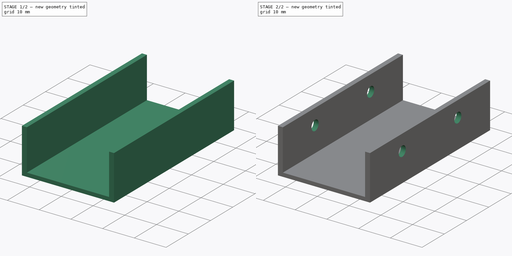
[diagram: build sequence overview — one tinted view per stage of 2, left to right]
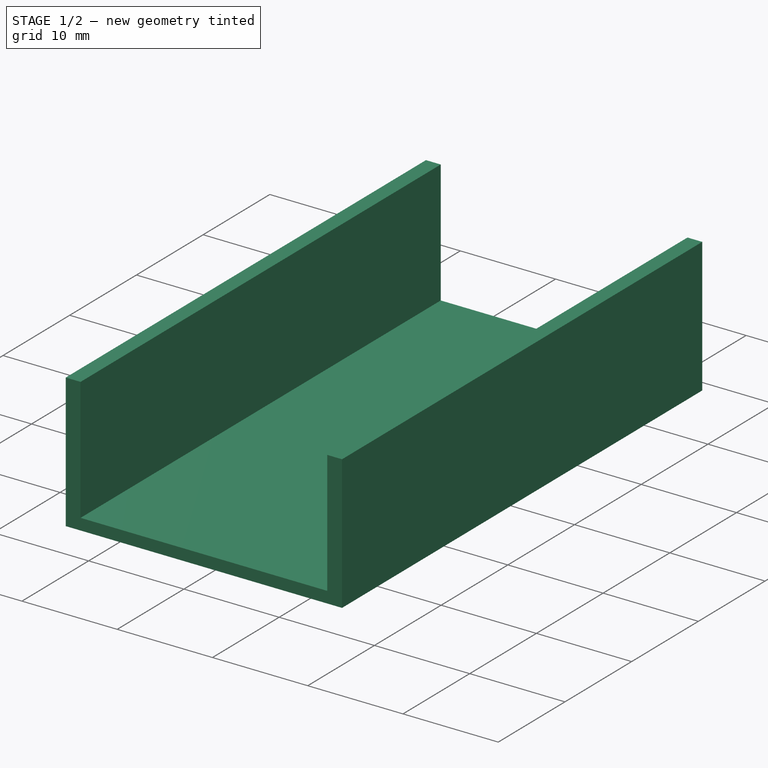
[diagram: stage 1 of 2 — iso view after this stage's code; geometry added in this stage tinted green]
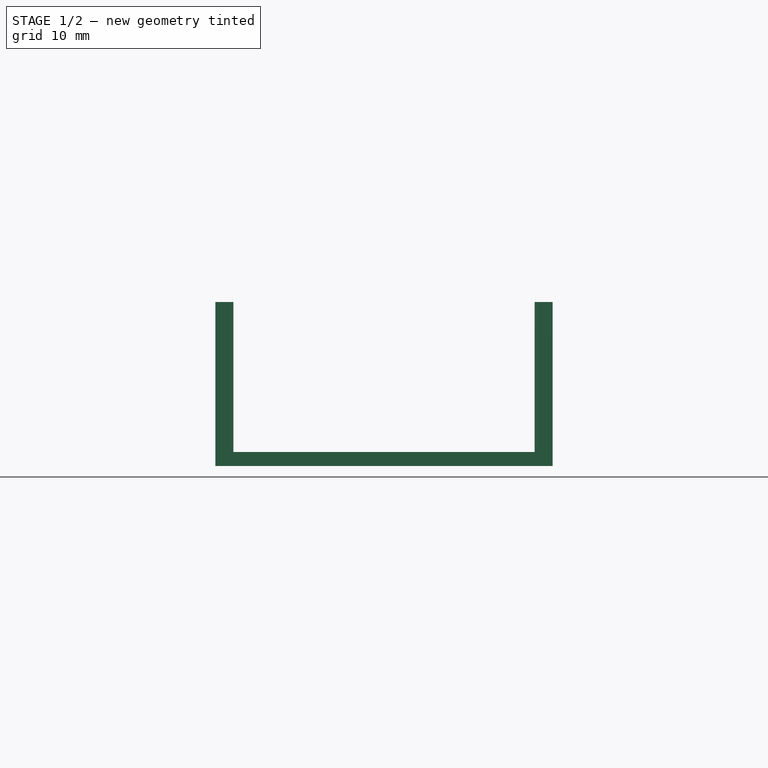
[diagram: stage 1 of 2 — front view after this stage's code; geometry added in this stage tinted green]
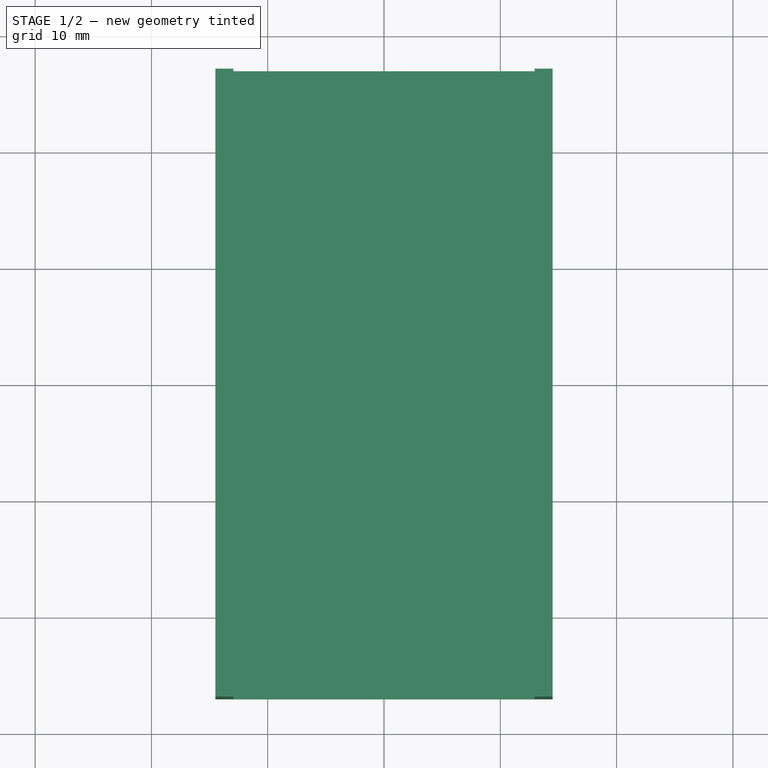
[diagram: stage 1 of 2 — top view after this stage's code; geometry added in this stage tinted green]
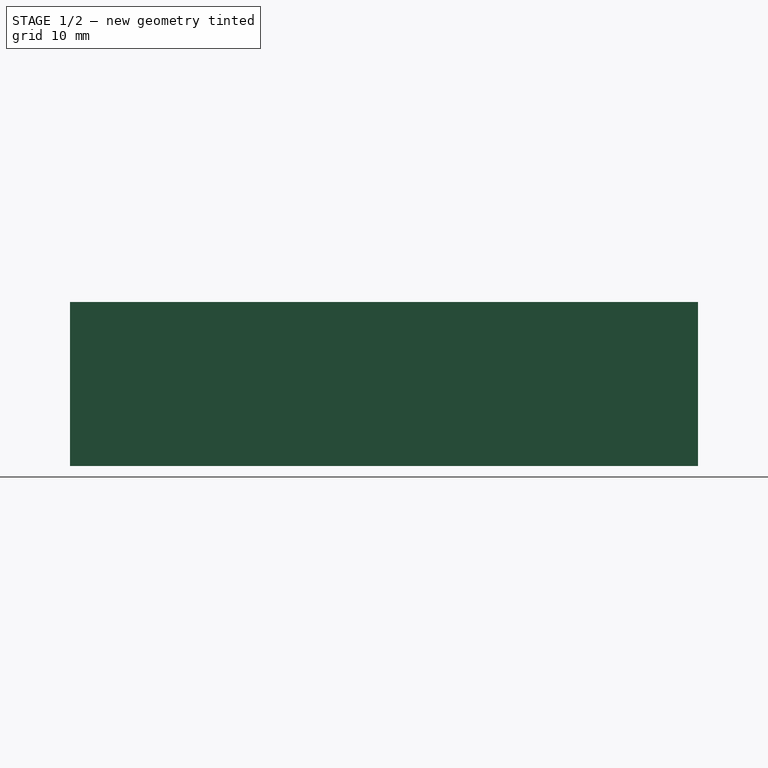
[diagram: stage 1 of 2 — right view after this stage's code; geometry added in this stage tinted green]
FCSTD DOCUMENT  (FreeCAD 0.21R33771 (Git))
Label: Holder Pad
License: All rights reserved
LicenseURL: http://en.wikipedia.org/wiki/All_rights_reserved
objects: Sketcher::SketchObject×2, PartDesign::CoordinateSystem×2, PartDesign::Pad×1, PartDesign::Pocket×1, PartDesign::Body×1
note: 9 computed .brp shape members not serialized (recipe doc carries the construction recipe); baked Part::Feature solids carry a one-line shape summary decoded from their .brp

FEATURE [Sketcher::SketchObject] Sketch
  FullyConstrained = true
  MapMode = 5
  Placement = pos=(0,0,0) rot=(1,0,0;1.5708rad)
  Support = -> [XZ_Plane001]
  sketch-geometry (8):
    g0: LineSegment StartX=-14.5 StartY=14.1 StartZ=0 EndX=-14.5 EndY=0 EndZ=0
    g1: LineSegment StartX=-14.5 StartY=0 StartZ=0 EndX=14.5 EndY=0 EndZ=0
    g2: LineSegment StartX=14.5 StartY=0 StartZ=0 EndX=14.5 EndY=14.1 EndZ=0
    g3: LineSegment StartX=14.5 StartY=14.1 StartZ=0 EndX=12.95 EndY=14.1 EndZ=0
    g4: LineSegment StartX=12.95 StartY=1.2 StartZ=0 EndX=-12.95 EndY=1.2 EndZ=0
    g5: LineSegment StartX=-12.95 StartY=1.2 StartZ=0 EndX=-12.95 EndY=14.1 EndZ=0
    g6: LineSegment StartX=-12.95 StartY=14.1 StartZ=0 EndX=-14.5 EndY=14.1 EndZ=0
    g7: LineSegment StartX=12.95 StartY=14.1 StartZ=0 EndX=12.95 EndY=1.2 EndZ=0
  constraints (23):
    c: PointOnObject(g0,g-1)
    c: Vertical(g0)
    c: Coincident(g0,g1)
    c: PointOnObject(g1,g-1)
    c: Coincident(g1,g2)
    c: Vertical(g2)
    c: Coincident(g2,g3)
    c: Horizontal(g3)
    c: Coincident(g7,g4)
    c: Horizontal(g4)
    c: Coincident(g4,g5)
    c: Vertical(g5)
    c: Coincident(g6,g0)
    c: Horizontal(g6)
    c: Equal(g3,g6)
    c: Symmetric(g3,g6,g-2)
    c: DistanceX(g4,g4) = 25.9
    c: DistanceY(g0,g0) = 14.1  'height'
    c: Vertical(g7)
    c: DistanceY(g0,g4) = 1.2
    c: DistanceX(g1,g1) = 29
    c: Coincident(g7,g3)
    c: Coincident(g5,g6)
FEATURE [PartDesign::Pad] Pad
  Direction = (0,-1,-2e-16)
  Length = 54
  Length2 = 10
  Midplane = true
  Placement = pos=(0,0,0) rot=(1,0,0;1.5708rad)
  Profile = -> Sketch
  ReferenceAxis = -> Sketch [N_Axis]
  Type = 0
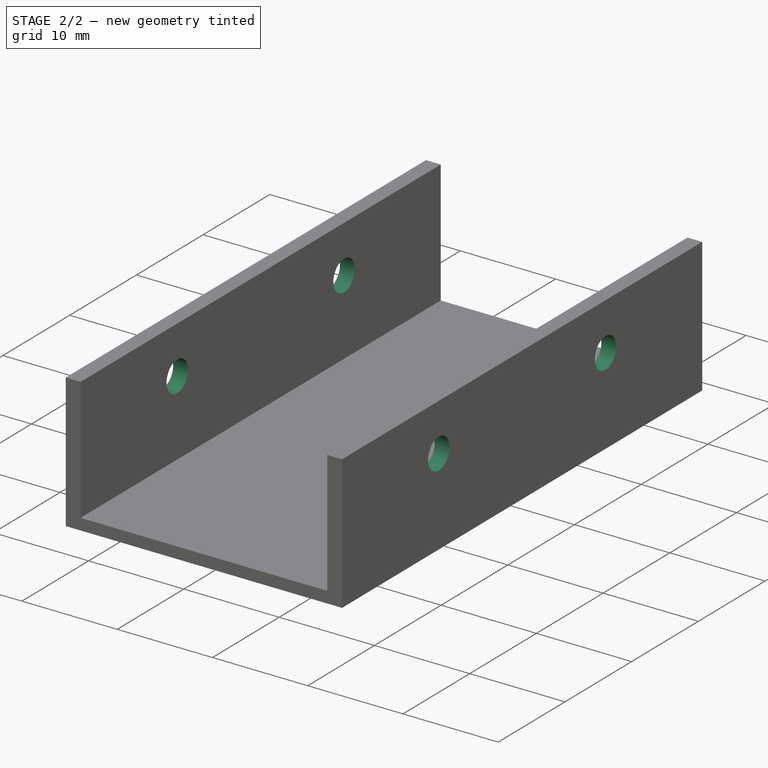
[diagram: stage 2 of 2 — iso view after this stage's code; geometry added in this stage tinted green]
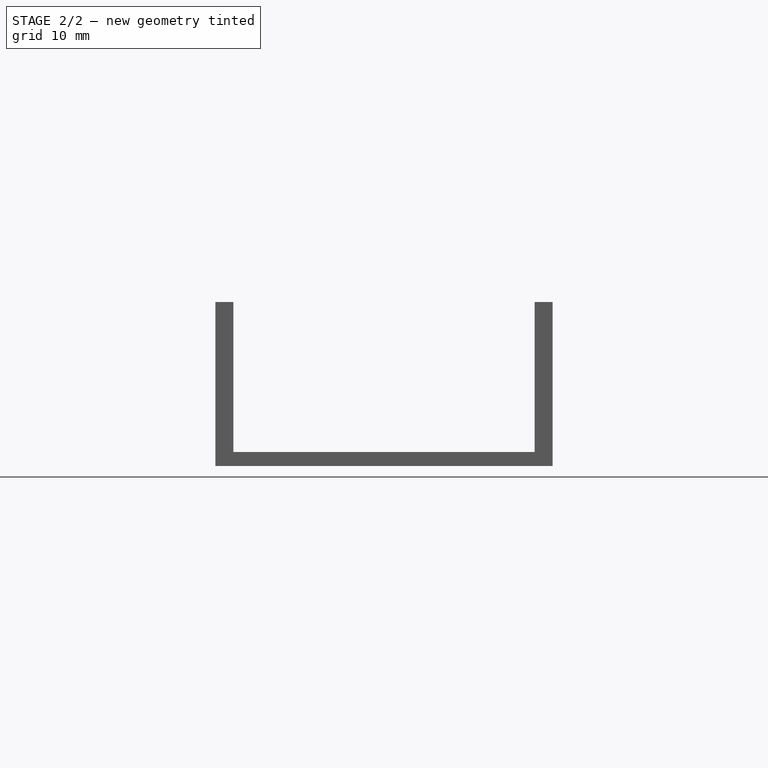
[diagram: stage 2 of 2 — front view after this stage's code; geometry added in this stage tinted green]
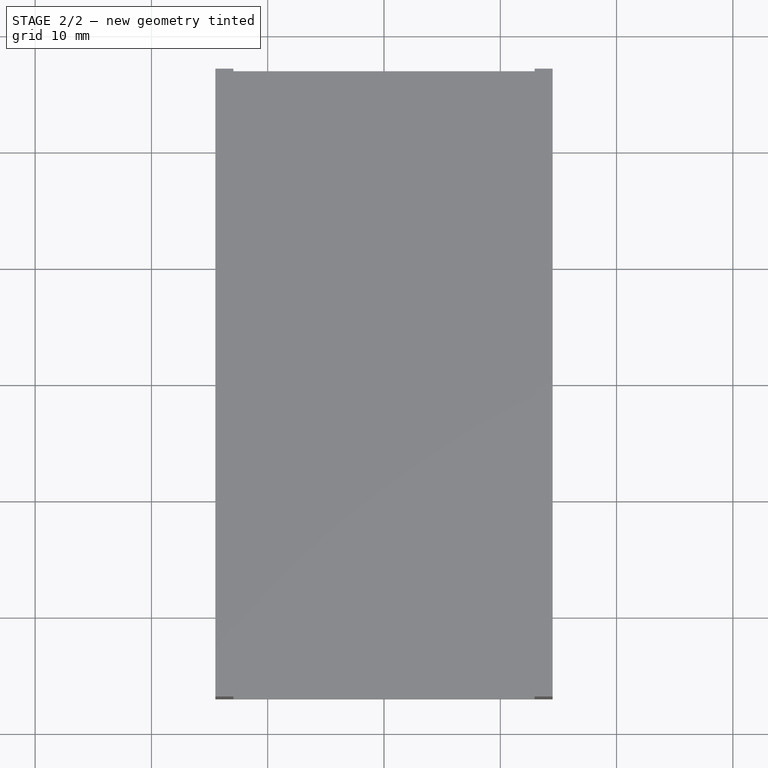
[diagram: stage 2 of 2 — top view after this stage's code; geometry added in this stage tinted green]
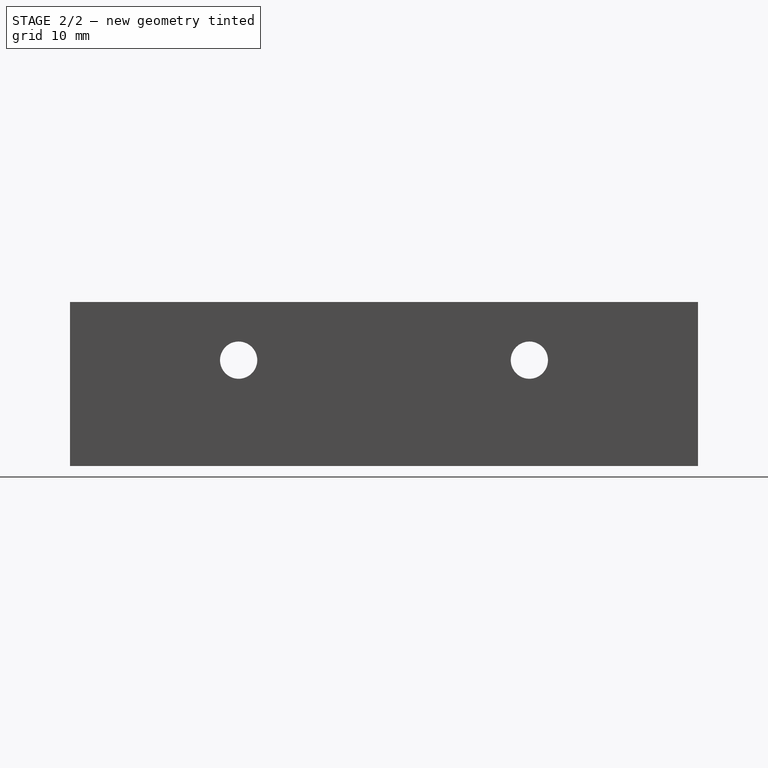
[diagram: stage 2 of 2 — right view after this stage's code; geometry added in this stage tinted green]
FEATURE [Sketcher::SketchObject] Sketch001
  FullyConstrained = true
  MapMode = 5
  Placement = pos=(0,0,0) rot=(0.57735,0.57735,0.57735;2.0944rad)
  Support = -> [YZ_Plane]
  expr: Constraints[3] = Sketch.Constraints.height - 5 mm
  sketch-geometry (2):
    g0: Circle CenterX=-12.5 CenterY=9.1 CenterZ=0 NormalX=0 NormalY=0 NormalZ=1 AngleXU=0 Radius=1.6
    g1: Circle CenterX=12.5 CenterY=9.1 CenterZ=0 NormalX=0 NormalY=0 NormalZ=1 AngleXU=0 Radius=1.6
  constraints (5):
    c: DistanceX(g0,g1) = 25
    c: Equal(g1,g0)
    c: Symmetric(g1,g0,g-2)
    c: DistanceY(g-1,g1) = 9.1
    c: Diameter(g1) = 3.2
FEATURE [PartDesign::Pocket] Pocket
  BaseFeature = -> Pad
  Direction = (-1,2e-16,-3e-16)
  Length = 5
  Length2 = 5
  Midplane = true
  Placement = pos=(0,0,0) rot=(1,0,0;1.5708rad)
  Profile = -> Sketch001
  ReferenceAxis = -> Sketch001 [N_Axis]
  Type = 1
FEATURE [PartDesign::CoordinateSystem] Local_CS
  AttacherType = Attacher::AttachEngine3D
  MapMode = 45
  Placement = pos=(4e-16,-2e-16,0) rot=(0,0,1;0rad)
  Support = -> [Pocket]
FEATURE [PartDesign::CoordinateSystem] Local_CS001
  AttacherType = Attacher::AttachEngine3D
  MapMode = 45
  Placement = pos=(5e-16,3e-16,1.2) rot=(0,0,1;0rad)
  Support = -> [Pocket]
FEATURE [PartDesign::Body] Body  label="Holder Pad"
  Group = -> [Sketch,Pad,Sketch001,Pocket,Local_CS,Local_CS001]
  Origin = -> Origin
  Tip = -> Pocket
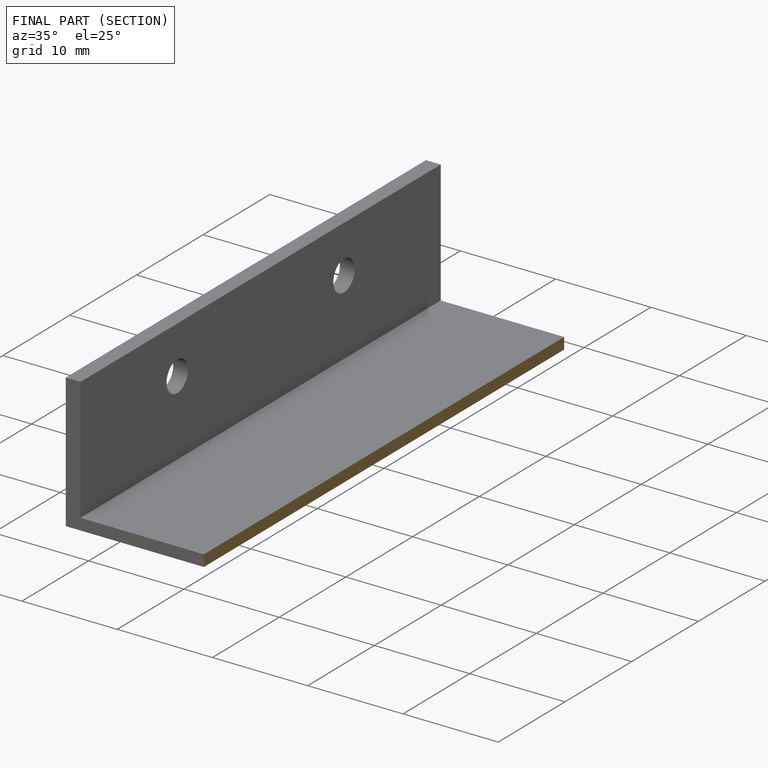
[diagram: finished part — half-section view (interior)]
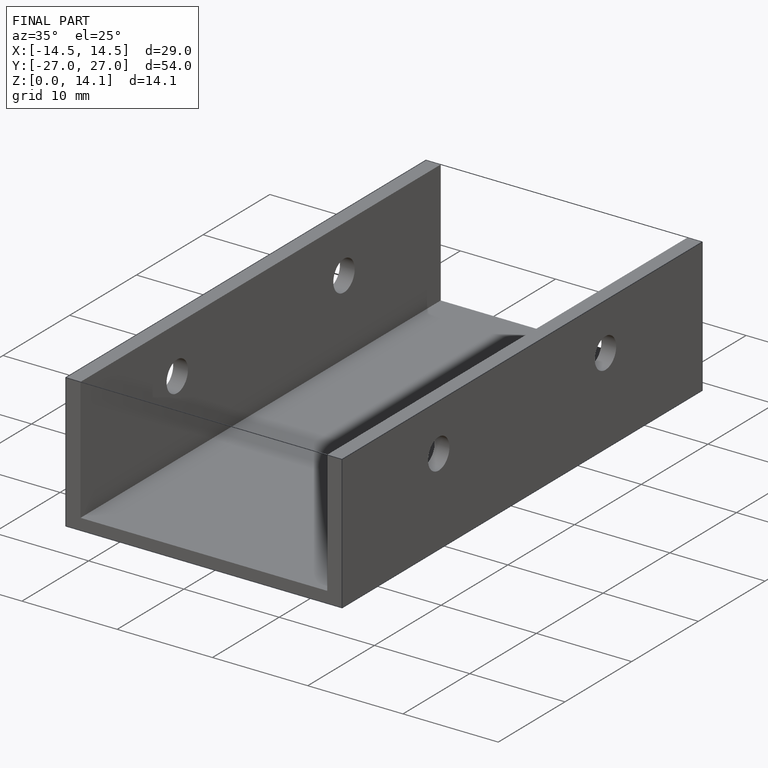
[diagram: finished part — iso view with bounding-box wireframe]
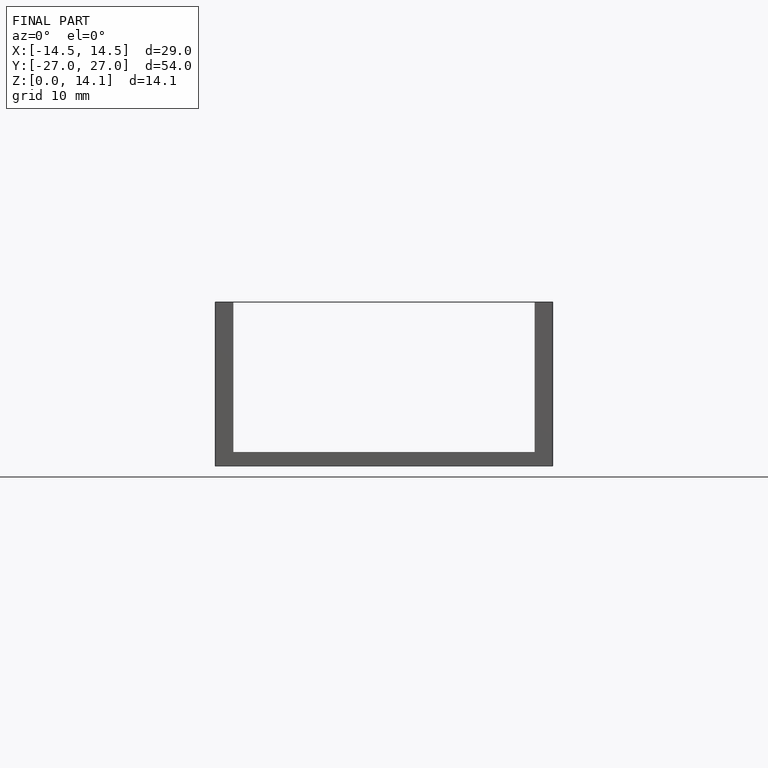
[diagram: finished part — front view with bounding-box wireframe]
